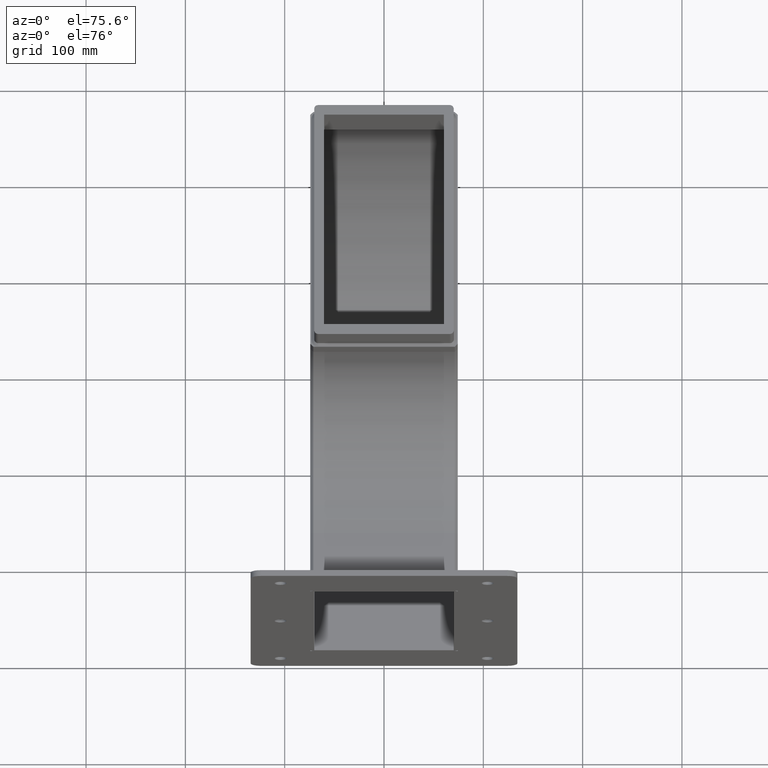
[diagram: clean part render]
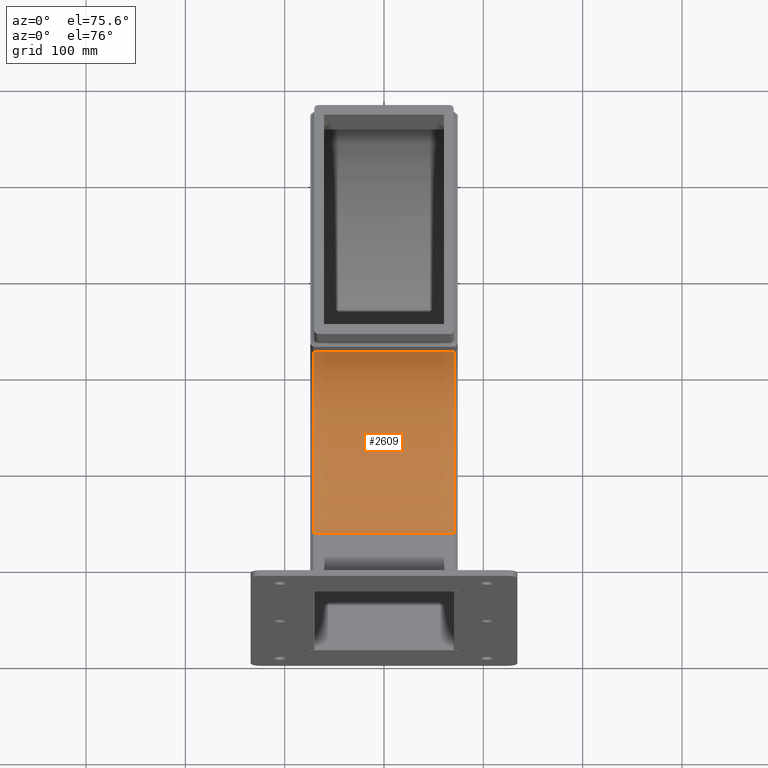
[diagram: same view with one face highlighted and labeled with its STEP entity id]
A machine part, auxiliary view. The second image highlights one B-rep face of the part: STEP entity #2609.
In plain terms, the highlighted cylindrical surface (partial cylindrical patch) has radius 150 mm, axis along (1, -0, 0).
Its self-contained STEP definition (entity closure, byte-faithful):
#94=CYLINDRICAL_SURFACE('',#2944,150.);
#247=FACE_OUTER_BOUND('',#413,.T.);
#413=EDGE_LOOP('',(#2269,#2270,#2271,#2272));
#496=CIRCLE('',#2939,150.);
#498=CIRCLE('',#2942,150.);
#752=LINE('',#4356,#1038);
#756=LINE('',#4372,#1042);
#1038=VECTOR('',#3611,10.);
#1042=VECTOR('',#3631,10.);
#1256=VERTEX_POINT('',#4344);
#1258=VERTEX_POINT('',#4350);
#1260=VERTEX_POINT('',#4360);
#1262=VERTEX_POINT('',#4366);
#1596=EDGE_CURVE('',#1258,#1256,#752,.T.);
#1599=EDGE_CURVE('',#1256,#1260,#496,.T.);
#1601=EDGE_CURVE('',#1258,#1262,#498,.T.);
#1604=EDGE_CURVE('',#1260,#1262,#756,.T.);
#2269=ORIENTED_EDGE('',*,*,#1596,.T.);
#2270=ORIENTED_EDGE('',*,*,#1599,.T.);
#2271=ORIENTED_EDGE('',*,*,#1604,.T.);
#2272=ORIENTED_EDGE('',*,*,#1601,.F.);
#2609=ADVANCED_FACE('',(#247),#94,.F.);
#2939=AXIS2_PLACEMENT_3D('',#4362,#3617,#3618);
#2942=AXIS2_PLACEMENT_3D('',#4367,#3623,#3624);
#2944=AXIS2_PLACEMENT_3D('',#4371,#3629,#3630);
#3611=DIRECTION('',(3.11641550771974E-16,6.85611411698343E-16,1.));
#3617=DIRECTION('center_axis',(0.,6.85611411698342E-16,1.));
#3618=DIRECTION('ref_axis',(-1.1842378929335E-15,1.,-7.105427357601E-16));
#3623=DIRECTION('center_axis',(0.,6.85611411698342E-16,1.));
#3624=DIRECTION('ref_axis',(-1.6579330501069E-15,1.,-7.105427357601E-16));
#3629=DIRECTION('center_axis',(0.,-6.85611411698342E-16,-1.));
#3630=DIRECTION('ref_axis',(-1.,0.,0.));
#3631=DIRECTION('',(0.,-6.85611411698342E-16,-1.));
#4344=CARTESIAN_POINT('',(153.,210.,71.2499999999998));
#4350=CARTESIAN_POINT('',(153.,210.,-71.2500000000002));
#4356=CARTESIAN_POINT('',(153.,210.,-71.2500000000002));
#4360=CARTESIAN_POINT('',(3.,60.,71.25));
#4362=CARTESIAN_POINT('Origin',(153.,60.0000000000001,71.2499999999999));
#4366=CARTESIAN_POINT('',(3.,59.9999999999999,-71.25));
#4367=CARTESIAN_POINT('Origin',(153.,60.,-71.2500000000001));
#4371=CARTESIAN_POINT('Origin',(153.,60.0000000000001,1.77635683940025E-14));
#4372=CARTESIAN_POINT('',(3.,60.,71.25));